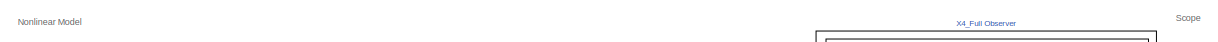
[diagram: root canvas - part 1/6, top left region]
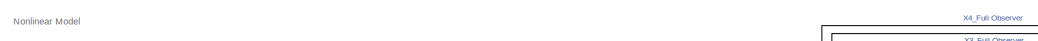
[diagram: root canvas - part 2/6, top right region]
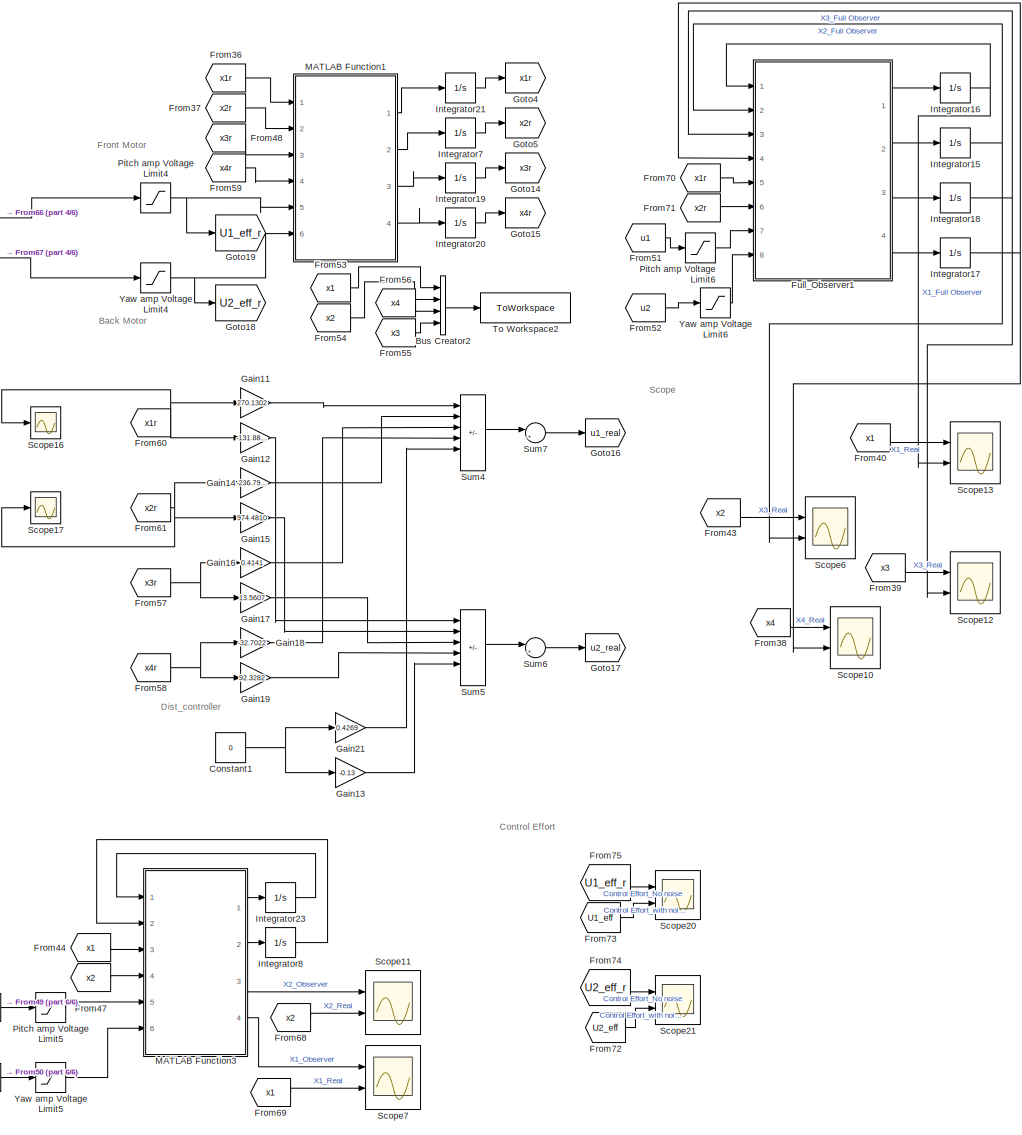
[diagram: root canvas - part 3/6, right side, full height]
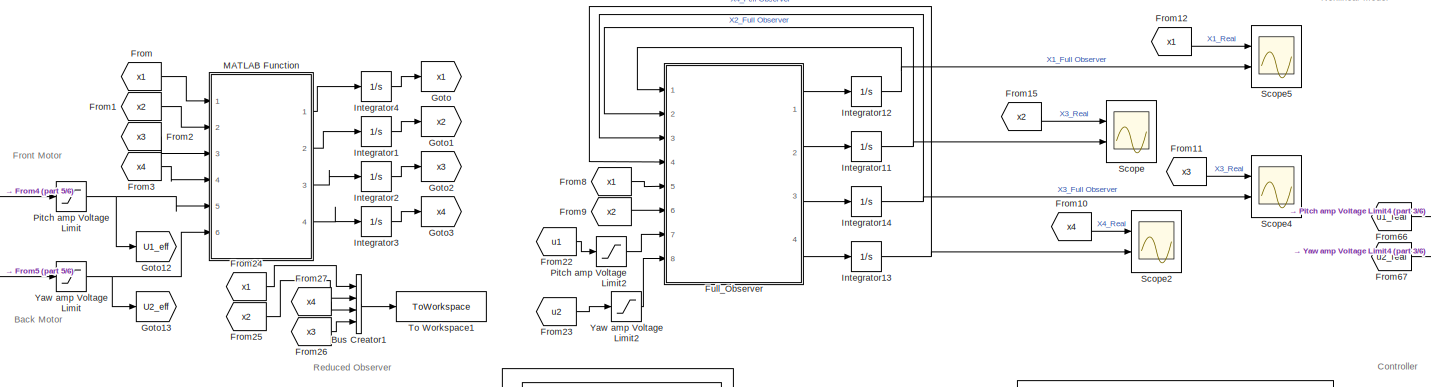
[diagram: root canvas - part 4/6, top center region]
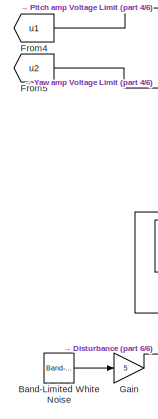
[diagram: root canvas - part 5/6, middle left region]
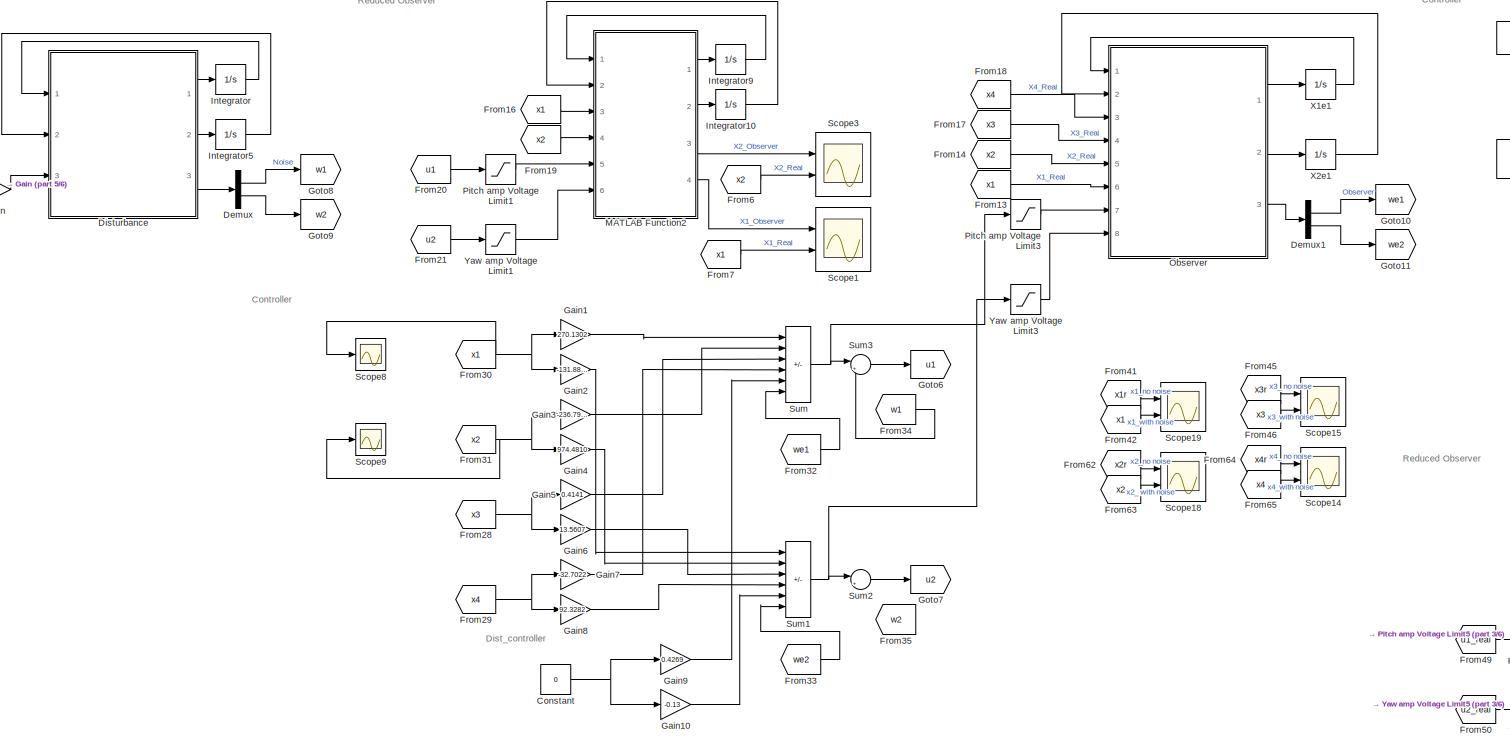
[diagram: root canvas - part 6/6, central region]
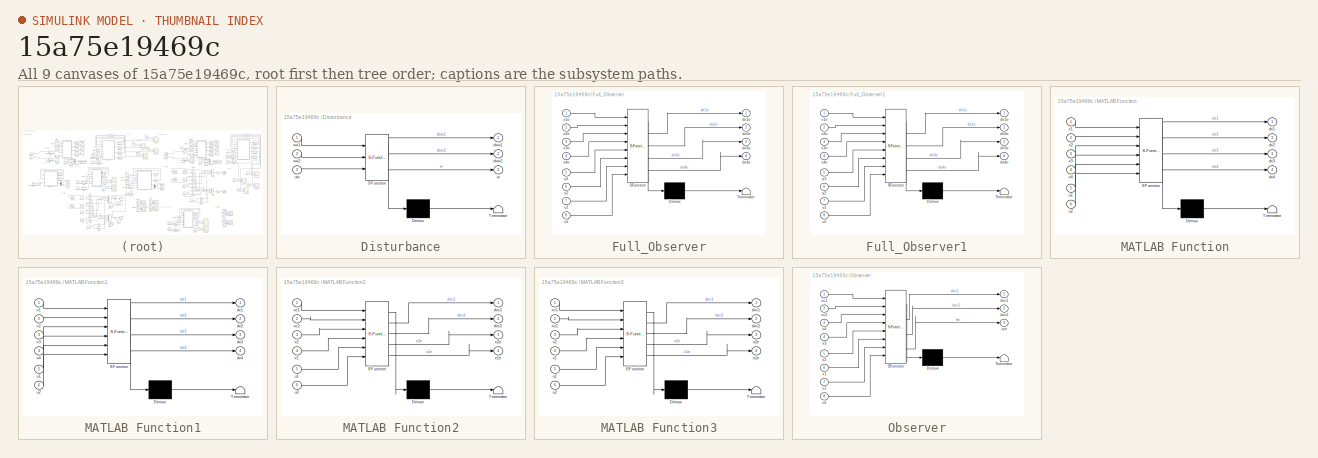
[diagram: thumbnail index - all 9 canvases of the model, root first then tree order]
MODEL slx_15a75e19469c
KIND model
CONFIG AbsTol = auto
CONFIG EnableMultiTasking = off
CONFIG FixedStep = auto
CONFIG InitFcn = % NOTE: If using VoltPAQ-X1, make sure both Gain switches are set to 3.\nK_AMP = 3;\n% Maximum Output Voltage (V): YAW limited to 15 V. PITCH limited to 24 V.\nVMAX_AMP_P = 24;\nVMAX_AMP_Y = 15;\n% Initial Angle of Pitch (rad)\ntheta_0 = -40.5*pi/180;\n\ng = 9.81;\n\n% Pitch and Yaw Motor Armature Resistance (Ohm)\nR_m_p = 0.83;\nR_m_y = 1.60;\n\n% Pitch and Yaw Motor Current-Torque Constant (N.m/A)\nK_t_p = 0.0...<+2432ch>
CONFIG MaxStep = auto
CONFIG MinStep = auto
CONFIG RelTol = 1e-3
CONFIG SampleTimeConstraint = Unconstrained
CONFIG Solver = VariableStepAuto
CONFIG SolverName = VariableStepAuto
CONFIG StartTime = 0.0
CONFIG StopTime = 10.0
BLOCK [Reference] Band-Limited White Noise  REF=simulink/Sources/Band-Limited
White Noise
  Ports = [0, 1]
  SourceBlock = simulink/Sources/Band-Limited\nWhite Noise
  SourceProductBaseCode = SL
  SourceType = Band-Limited White Noise.
BLOCK [BusCreator] Bus Creator1
  DisplayOption = bar
  InheritFromInputs = on
  Inputs = 4
  Ports = [4, 1]
BLOCK [BusCreator] Bus Creator2
  DisplayOption = bar
  InheritFromInputs = on
  Inputs = 4
  Ports = [4, 1]
BLOCK [Constant] Constant
  Value = 0
BLOCK [Constant] Constant1
  Value = 0
BLOCK [Demux] Demux
  Outputs = 2
  Ports = [1, 2]
BLOCK [Demux] Demux1
  Outputs = 2
  Ports = [1, 2]
BLOCK [SubSystem] Disturbance
  ErrorFcn = Stateflow.Translate.translate
  PermitHierarchicalResolution = ExplicitOnly
  Ports = [3, 3]
  RequestExecContextInheritance = off
  SFBlockType = MATLAB Function
  TreatAsAtomicUnit = on
BLOCK [Demux] Disturbance/ Demux 
  Outputs = 1
  Ports = [1, 1]
BLOCK [S-Function] Disturbance/ SFunction 
  EnableBusSupport = on
  FunctionName = sf_sfun
  PortCounts = [3 4]
  Ports = [3, 4]
  SFcnIsStateOwnerBlock = off
  SFunctionDeploymentMode = off
  Tag = Stateflow S-Function comparison_noise_nonoise 19
BLOCK [Terminator] Disturbance/ Terminator 
BLOCK [Outport] Disturbance/dxw1
BLOCK [Outport] Disturbance/dxw2
  Port = 2
BLOCK [Inport] Disturbance/uw
  Port = 3
BLOCK [Outport] Disturbance/w
  Port = 3
BLOCK [Inport] Disturbance/xw1
BLOCK [Inport] Disturbance/xw2
  Port = 2
BLOCK [From] From
  GotoTag = x1
BLOCK [From] From1
  GotoTag = x2
BLOCK [From] From10
  GotoTag = x4
BLOCK [From] From11
  GotoTag = x3
BLOCK [From] From12
  GotoTag = x1
BLOCK [From] From13
  GotoTag = x1
BLOCK [From] From14
  GotoTag = x2
BLOCK [From] From15
  GotoTag = x2
BLOCK [From] From16
  GotoTag = x1
BLOCK [From] From17
  GotoTag = x3
BLOCK [From] From18
  GotoTag = x4
BLOCK [From] From19
  GotoTag = x2
BLOCK [From] From2
  GotoTag = x3
BLOCK [From] From20
  GotoTag = u1
BLOCK [From] From21
  GotoTag = u2
BLOCK [From] From22
  GotoTag = u1
BLOCK [From] From23
  GotoTag = u2
BLOCK [From] From24
  GotoTag = x1
BLOCK [From] From25
  GotoTag = x2
BLOCK [From] From26
  GotoTag = x3
BLOCK [From] From27
  GotoTag = x4
BLOCK [From] From28
  GotoTag = x3
BLOCK [From] From29
  GotoTag = x4
BLOCK [From] From3
  GotoTag = x4
BLOCK [From] From30
  GotoTag = x1
BLOCK [From] From31
  GotoTag = x2
BLOCK [From] From32
  GotoTag = we1
BLOCK [From] From33
  GotoTag = we2
BLOCK [From] From34
  GotoTag = w1
BLOCK [From] From35
  GotoTag = w2
BLOCK [From] From36
  GotoTag = x1r
BLOCK [From] From37
  GotoTag = x2r
BLOCK [From] From38
  GotoTag = x4
BLOCK [From] From39
  GotoTag = x3
BLOCK [From] From4
  GotoTag = u1
BLOCK [From] From40
  GotoTag = x1
BLOCK [From] From41
  GotoTag = x1r
BLOCK [From] From42
  GotoTag = x1
BLOCK [From] From43
  GotoTag = x2
BLOCK [From] From44
  GotoTag = x1
BLOCK [From] From45
  GotoTag = x3r
BLOCK [From] From46
  GotoTag = x3
BLOCK [From] From47
  GotoTag = x2
BLOCK [From] From48
  GotoTag = x3r
BLOCK [From] From49
  GotoTag = u1_real
BLOCK [From] From5
  GotoTag = u2
BLOCK [From] From50
  GotoTag = u2_real
BLOCK [From] From51
  GotoTag = u1
BLOCK [From] From52
  GotoTag = u2
BLOCK [From] From53
  GotoTag = x1
BLOCK [From] From54
  GotoTag = x2
BLOCK [From] From55
  GotoTag = x3
BLOCK [From] From56
  GotoTag = x4
BLOCK [From] From57
  GotoTag = x3r
BLOCK [From] From58
  GotoTag = x4r
BLOCK [From] From59
  GotoTag = x4r
BLOCK [From] From6
  GotoTag = x2
BLOCK [From] From60
  GotoTag = x1r
BLOCK [From] From61
  GotoTag = x2r
BLOCK [From] From62
  GotoTag = x2r
BLOCK [From] From63
  GotoTag = x2
BLOCK [From] From64
  GotoTag = x4r
BLOCK [From] From65
  GotoTag = x4
BLOCK [From] From66
  GotoTag = u1_real
BLOCK [From] From67
  GotoTag = u2_real
BLOCK [From] From68
  GotoTag = x2
BLOCK [From] From69
  GotoTag = x1
BLOCK [From] From7
  GotoTag = x1
BLOCK [From] From70
  GotoTag = x1r
BLOCK [From] From71
  GotoTag = x2r
BLOCK [From] From72
  GotoTag = U2_eff
BLOCK [From] From73
  GotoTag = U1_eff
BLOCK [From] From74
  GotoTag = U2_eff_r
BLOCK [From] From75
  GotoTag = U1_eff_r
BLOCK [From] From8
  GotoTag = x1
BLOCK [From] From9
  GotoTag = x2
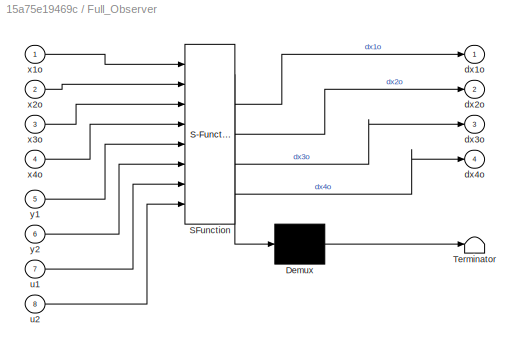
BLOCK [SubSystem] Full_Observer
  ErrorFcn = Stateflow.Translate.translate
  PermitHierarchicalResolution = ExplicitOnly
  Ports = [8, 4]
  RequestExecContextInheritance = off
  SFBlockType = MATLAB Function
  TreatAsAtomicUnit = on
BLOCK [Demux] Full_Observer/ Demux 
  Outputs = 1
  Ports = [1, 1]
BLOCK [S-Function] Full_Observer/ SFunction 
  EnableBusSupport = on
  FunctionName = sf_sfun
  PortCounts = [8 5]
  Ports = [8, 5]
  SFcnIsStateOwnerBlock = off
  SFunctionDeploymentMode = off
  Tag = Stateflow S-Function comparison_noise_nonoise 13
BLOCK [Terminator] Full_Observer/ Terminator 
BLOCK [Outport] Full_Observer/dx1o
  VectorParamsAs1DForOutWhenUnconnected = off
BLOCK [Outport] Full_Observer/dx2o
  Port = 2
BLOCK [Outport] Full_Observer/dx3o
  Port = 3
BLOCK [Outport] Full_Observer/dx4o
  Port = 4
BLOCK [Inport] Full_Observer/u1
  Port = 7
BLOCK [Inport] Full_Observer/u2
  Port = 8
BLOCK [Inport] Full_Observer/x1o
BLOCK [Inport] Full_Observer/x2o
  Port = 2
BLOCK [Inport] Full_Observer/x3o
  Port = 3
BLOCK [Inport] Full_Observer/x4o
  Port = 4
BLOCK [Inport] Full_Observer/y1
  Port = 5
BLOCK [Inport] Full_Observer/y2
  Port = 6
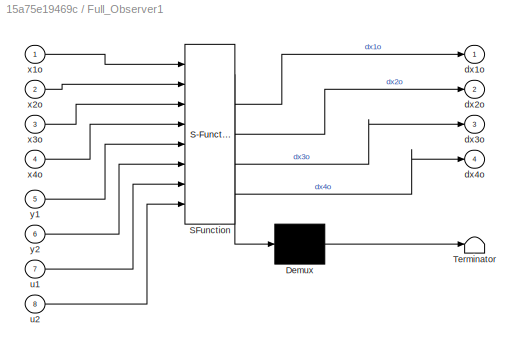
BLOCK [SubSystem] Full_Observer1
  ErrorFcn = Stateflow.Translate.translate
  PermitHierarchicalResolution = ExplicitOnly
  Ports = [8, 4]
  RequestExecContextInheritance = off
  SFBlockType = MATLAB Function
  TreatAsAtomicUnit = on
BLOCK [Demux] Full_Observer1/ Demux 
  Outputs = 1
  Ports = [1, 1]
BLOCK [S-Function] Full_Observer1/ SFunction 
  EnableBusSupport = on
  FunctionName = sf_sfun
  PortCounts = [8 5]
  Ports = [8, 5]
  SFcnIsStateOwnerBlock = off
  SFunctionDeploymentMode = off
  Tag = Stateflow S-Function comparison_noise_nonoise 4
BLOCK [Terminator] Full_Observer1/ Terminator 
BLOCK [Outport] Full_Observer1/dx1o
  VectorParamsAs1DForOutWhenUnconnected = off
BLOCK [Outport] Full_Observer1/dx2o
  Port = 2
BLOCK [Outport] Full_Observer1/dx3o
  Port = 3
BLOCK [Outport] Full_Observer1/dx4o
  Port = 4
BLOCK [Inport] Full_Observer1/u1
  Port = 7
BLOCK [Inport] Full_Observer1/u2
  Port = 8
BLOCK [Inport] Full_Observer1/x1o
BLOCK [Inport] Full_Observer1/x2o
  Port = 2
BLOCK [Inport] Full_Observer1/x3o
  Port = 3
BLOCK [Inport] Full_Observer1/x4o
  Port = 4
BLOCK [Inport] Full_Observer1/y1
  Port = 5
BLOCK [Inport] Full_Observer1/y2
  Port = 6
BLOCK [Gain] Gain
  Gain = 5
BLOCK [Gain] Gain1
  Gain = 270.1302
BLOCK [Gain] Gain10
  Gain = -0.13
BLOCK [Gain] Gain11
  Gain = 270.1302
BLOCK [Gain] Gain12
  Gain = -131.8823
BLOCK [Gain] Gain13
  Gain = -0.13
BLOCK [Gain] Gain14
  Gain = -236.7938
BLOCK [Gain] Gain15
  Gain = 974.4810
BLOCK [Gain] Gain16
  Gain = 0.4141
BLOCK [Gain] Gain17
  Gain = 13.5607
BLOCK [Gain] Gain18
  Gain = -32.7022
BLOCK [Gain] Gain19
  Gain = 92.3282
BLOCK [Gain] Gain2
  Gain = -131.8823
BLOCK [Gain] Gain21
  Gain = 0.4269
BLOCK [Gain] Gain3
  Gain = -236.7938
BLOCK [Gain] Gain4
  Gain = 974.4810
BLOCK [Gain] Gain5
  Gain = 0.4141
BLOCK [Gain] Gain6
  Gain = 13.5607
BLOCK [Gain] Gain7
  Gain = -32.7022
BLOCK [Gain] Gain8
  Gain = 92.3282
BLOCK [Gain] Gain9
  Gain = 0.4269
BLOCK [Goto] Goto
  GotoTag = x1
BLOCK [Goto] Goto1
  GotoTag = x2
BLOCK [Goto] Goto10
  GotoTag = we1
BLOCK [Goto] Goto11
  GotoTag = we2
BLOCK [Goto] Goto12
  GotoTag = U1_eff
BLOCK [Goto] Goto13
  GotoTag = U2_eff
BLOCK [Goto] Goto14
  GotoTag = x3r
BLOCK [Goto] Goto15
  GotoTag = x4r
BLOCK [Goto] Goto16
  GotoTag = u1_real
BLOCK [Goto] Goto17
  GotoTag = u2_real
BLOCK [Goto] Goto18
  GotoTag = U2_eff_r
BLOCK [Goto] Goto19
  GotoTag = U1_eff_r
BLOCK [Goto] Goto2
  GotoTag = x3
BLOCK [Goto] Goto3
  GotoTag = x4
BLOCK [Goto] Goto4
  GotoTag = x1r
BLOCK [Goto] Goto5
  GotoTag = x2r
BLOCK [Goto] Goto6
  GotoTag = u1
BLOCK [Goto] Goto7
  GotoTag = u2
BLOCK [Goto] Goto8
  GotoTag = w1
BLOCK [Goto] Goto9
  GotoTag = w2
BLOCK [Integrator] Integrator
  Ports = [1, 1]
BLOCK [Integrator] Integrator1
  Ports = [1, 1]
BLOCK [Integrator] Integrator10
  Ports = [1, 1]
BLOCK [Integrator] Integrator11
  Ports = [1, 1]
BLOCK [Integrator] Integrator12
  Ports = [1, 1]
BLOCK [Integrator] Integrator13
  Ports = [1, 1]
BLOCK [Integrator] Integrator14
  Ports = [1, 1]
BLOCK [Integrator] Integrator15
  Ports = [1, 1]
BLOCK [Integrator] Integrator16
  Ports = [1, 1]
BLOCK [Integrator] Integrator17
  Ports = [1, 1]
BLOCK [Integrator] Integrator18
  Ports = [1, 1]
BLOCK [Integrator] Integrator19
  InitialCondition = 10
  Ports = [1, 1]
BLOCK [Integrator] Integrator2
  InitialCondition = 10
  Ports = [1, 1]
BLOCK [Integrator] Integrator20
  Ports = [1, 1]
BLOCK [Integrator] Integrator21
  LowerSaturationLimit = -40.5*pi/180
  Ports = [1, 1]
  UpperSaturationLimit = 40.5*pi/180
BLOCK [Integrator] Integrator23
  Ports = [1, 1]
BLOCK [Integrator] Integrator3
  Ports = [1, 1]
BLOCK [Integrator] Integrator4
  LowerSaturationLimit = -40.5*pi/180
  Ports = [1, 1]
  UpperSaturationLimit = 40.5*pi/180
BLOCK [Integrator] Integrator5
  Ports = [1, 1]
BLOCK [Integrator] Integrator7
  Ports = [1, 1]
BLOCK [Integrator] Integrator8
  Ports = [1, 1]
BLOCK [Integrator] Integrator9
  Ports = [1, 1]
BLOCK [SubSystem] MATLAB Function
  ErrorFcn = Stateflow.Translate.translate
  PermitHierarchicalResolution = ExplicitOnly
  Ports = [6, 4]
  RequestExecContextInheritance = off
  SFBlockType = MATLAB Function
  TreatAsAtomicUnit = on
BLOCK [Demux] MATLAB Function/ Demux 
  Outputs = 1
  Ports = [1, 1]
BLOCK [S-Function] MATLAB Function/ SFunction 
  EnableBusSupport = on
  FunctionName = sf_sfun
  PortCounts = [6 5]
  Ports = [6, 5]
  SFcnIsStateOwnerBlock = off
  SFunctionDeploymentMode = off
  Tag = Stateflow S-Function comparison_noise_nonoise 18
BLOCK [Terminator] MATLAB Function/ Terminator 
BLOCK [Outport] MATLAB Function/dx1
BLOCK [Outport] MATLAB Function/dx2
  Port = 2
BLOCK [Outport] MATLAB Function/dx3
  Port = 3
BLOCK [Outport] MATLAB Function/dx4
  Port = 4
BLOCK [Inport] MATLAB Function/u1
  Port = 5
BLOCK [Inport] MATLAB Function/u2
  Port = 6
BLOCK [Inport] MATLAB Function/x1
BLOCK [Inport] MATLAB Function/x2
  Port = 2
BLOCK [Inport] MATLAB Function/x3
  Port = 3
BLOCK [Inport] MATLAB Function/x4
  Port = 4
BLOCK [SubSystem] MATLAB Function1
  ErrorFcn = Stateflow.Translate.translate
  PermitHierarchicalResolution = ExplicitOnly
  Ports = [6, 4]
  RequestExecContextInheritance = off
  SFBlockType = MATLAB Function
  TreatAsAtomicUnit = on
BLOCK [Demux] MATLAB Function1/ Demux 
  Outputs = 1
  Ports = [1, 1]
BLOCK [S-Function] MATLAB Function1/ SFunction 
  EnableBusSupport = on
  FunctionName = sf_sfun
  PortCounts = [6 5]
  Ports = [6, 5]
  SFcnIsStateOwnerBlock = off
  SFunctionDeploymentMode = off
  Tag = Stateflow S-Function comparison_noise_nonoise 5
BLOCK [Terminator] MATLAB Function1/ Terminator 
BLOCK [Outport] MATLAB Function1/dx1
BLOCK [Outport] MATLAB Function1/dx2
  Port = 2
BLOCK [Outport] MATLAB Function1/dx3
  Port = 3
BLOCK [Outport] MATLAB Function1/dx4
  Port = 4
BLOCK [Inport] MATLAB Function1/u1
  Port = 5
BLOCK [Inport] MATLAB Function1/u2
  Port = 6
BLOCK [Inport] MATLAB Function1/x1
BLOCK [Inport] MATLAB Function1/x2
  Port = 2
BLOCK [Inport] MATLAB Function1/x3
  Port = 3
BLOCK [Inport] MATLAB Function1/x4
  Port = 4
BLOCK [SubSystem] MATLAB Function2
  ErrorFcn = Stateflow.Translate.translate
  PermitHierarchicalResolution = ExplicitOnly
  Ports = [6, 4]
  RequestExecContextInheritance = off
  SFBlockType = MATLAB Function
  TreatAsAtomicUnit = on
BLOCK [Demux] MATLAB Function2/ Demux 
  Outputs = 1
  Ports = [1, 1]
BLOCK [S-Function] MATLAB Function2/ SFunction 
  EnableBusSupport = on
  FunctionName = sf_sfun
  PortCounts = [6 5]
  Ports = [6, 5]
  SFcnIsStateOwnerBlock = off
  SFunctionDeploymentMode = off
  Tag = Stateflow S-Function comparison_noise_nonoise 2
BLOCK [Terminator] MATLAB Function2/ Terminator 
BLOCK [Outport] MATLAB Function2/dxc1
BLOCK [Outport] MATLAB Function2/dxc2
  Port = 2
BLOCK [Inport] MATLAB Function2/u1
  Port = 5
BLOCK [Inport] MATLAB Function2/u2
  Port = 6
BLOCK [Inport] MATLAB Function2/x1
  Port = 4
BLOCK [Outport] MATLAB Function2/x1e
  Port = 4
BLOCK [Inport] MATLAB Function2/x2
  Port = 3
BLOCK [Outport] MATLAB Function2/x2e
  Port = 3
BLOCK [Inport] MATLAB Function2/xc1
BLOCK [Inport] MATLAB Function2/xc2
  Port = 2
BLOCK [SubSystem] MATLAB Function3
  ErrorFcn = Stateflow.Translate.translate
  PermitHierarchicalResolution = ExplicitOnly
  Ports = [6, 4]
  RequestExecContextInheritance = off
  SFBlockType = MATLAB Function
  TreatAsAtomicUnit = on
BLOCK [Demux] MATLAB Function3/ Demux 
  Outputs = 1
  Ports = [1, 1]
BLOCK [S-Function] MATLAB Function3/ SFunction 
  EnableBusSupport = on
  FunctionName = sf_sfun
  PortCounts = [6 5]
  Ports = [6, 5]
  SFcnIsStateOwnerBlock = off
  SFunctionDeploymentMode = off
  Tag = Stateflow S-Function comparison_noise_nonoise 6
BLOCK [Terminator] MATLAB Function3/ Terminator 
BLOCK [Outport] MATLAB Function3/dxc1
BLOCK [Outport] MATLAB Function3/dxc2
  Port = 2
BLOCK [Inport] MATLAB Function3/u1
  Port = 5
BLOCK [Inport] MATLAB Function3/u2
  Port = 6
BLOCK [Inport] MATLAB Function3/x1
  Port = 4
BLOCK [Outport] MATLAB Function3/x1e
  Port = 4
BLOCK [Inport] MATLAB Function3/x2
  Port = 3
BLOCK [Outport] MATLAB Function3/x2e
  Port = 3
BLOCK [Inport] MATLAB Function3/xc1
BLOCK [Inport] MATLAB Function3/xc2
  Port = 2
BLOCK [SubSystem] Observer
  ErrorFcn = Stateflow.Translate.translate
  PermitHierarchicalResolution = ExplicitOnly
  Ports = [8, 3]
  RequestExecContextInheritance = off
  SFBlockType = MATLAB Function
  TreatAsAtomicUnit = on
BLOCK [Demux] Observer/ Demux 
  Outputs = 1
  Ports = [1, 1]
BLOCK [S-Function] Observer/ SFunction 
  EnableBusSupport = on
  FunctionName = sf_sfun
  PortCounts = [8 4]
  Ports = [8, 4]
  SFcnIsStateOwnerBlock = off
  SFunctionDeploymentMode = off
  Tag = Stateflow S-Function comparison_noise_nonoise 1
BLOCK [Terminator] Observer/ Terminator 
BLOCK [Outport] Observer/dxc1
  VectorParamsAs1DForOutWhenUnconnected = off
BLOCK [Outport] Observer/dxc2
  Port = 2
BLOCK [Inport] Observer/u1
  Port = 7
BLOCK [Inport] Observer/u2
  Port = 8
BLOCK [Outport] Observer/we
  Port = 3
BLOCK [Inport] Observer/x1
  Port = 6
BLOCK [Inport] Observer/x2
  Port = 5
BLOCK [Inport] Observer/x3
  Port = 4
BLOCK [Inport] Observer/x4
  Port = 3
BLOCK [Inport] Observer/xc1
BLOCK [Inport] Observer/xc2
  Port = 2
BLOCK [Saturate] Pitch amp Voltage Limit
  LowerLimit = - VMAX_AMP_P
  UpperLimit = VMAX_AMP_P
BLOCK [Saturate] Pitch amp Voltage Limit1
  LowerLimit = - VMAX_AMP_P
  UpperLimit = VMAX_AMP_P
BLOCK [Saturate] Pitch amp Voltage Limit2
  LowerLimit = - VMAX_AMP_P
  UpperLimit = VMAX_AMP_P
BLOCK [Saturate] Pitch amp Voltage Limit3
  LowerLimit = - VMAX_AMP_P
  UpperLimit = VMAX_AMP_P
BLOCK [Saturate] Pitch amp Voltage Limit4
  LowerLimit = - VMAX_AMP_P
  UpperLimit = VMAX_AMP_P
BLOCK [Saturate] Pitch amp Voltage Limit5
  LowerLimit = - VMAX_AMP_P
  UpperLimit = VMAX_AMP_P
BLOCK [Saturate] Pitch amp Voltage Limit6
  LowerLimit = - VMAX_AMP_P
  UpperLimit = VMAX_AMP_P
BLOCK [Scope] Scope
  Floating = off
  NumInputPorts = 2
  Ports = [2]
  ScopeSpecificationString = Simulink.scopes.TimeScopeBlockCfg('CurrentConfiguration', extmgr.ConfigurationSet(extmgr.Configuration('Core','General UI',true),extmgr.Configuration('Core','Source UI',true),extmgr.Configuration('Sources','WiredSimulink',true,'DataLoggingVariableName','ScopeData2'),extmgr.Configuration('Visuals','Time Domain',true,'SerializedDisplays',{struct('MinYLimReal','-0.10245','MaxYLimReal','0.01352','YLab...<+1720ch>
BLOCK [Scope] Scope1
  Floating = off
  NumInputPorts = 2
  Ports = [2]
  ScopeSpecificationString = Simulink.scopes.TimeScopeBlockCfg('CurrentConfiguration', extmgr.ConfigurationSet(extmgr.Configuration('Core','General UI',true),extmgr.Configuration('Core','Source UI',true),extmgr.Configuration('Sources','WiredSimulink',true,'DataLoggingVariableName','ScopeData3'),extmgr.Configuration('Visuals','Time Domain',true,'SerializedDisplays',{struct('MinYLimReal','-1.65036','MaxYLimReal','1.30856','YLab...<+2034ch>
BLOCK [Scope] Scope10
  Floating = off
  NumInputPorts = 2
  Ports = [2]
  ScopeSpecificationString = Simulink.scopes.TimeScopeBlockCfg('CurrentConfiguration', extmgr.ConfigurationSet(extmgr.Configuration('Core','General UI',true),extmgr.Configuration('Core','Source UI',true),extmgr.Configuration('Sources','WiredSimulink',true,'DataLoggingVariableName','ScopeData8'),extmgr.Configuration('Visuals','Time Domain',true,'SerializedDisplays',{struct('MinYLimReal','-0.95108','MaxYLimReal','0.59142','YLab...<+1722ch>
BLOCK [Scope] Scope11
  Floating = off
  NumInputPorts = 2
  Ports = [2]
  ScopeSpecificationString = Simulink.scopes.TimeScopeBlockCfg('CurrentConfiguration', extmgr.ConfigurationSet(extmgr.Configuration('Core','General UI',true),extmgr.Configuration('Core','Source UI',true),extmgr.Configuration('Sources','WiredSimulink',true,'DataLoggingVariableName','ScopeData10'),extmgr.Configuration('Visuals','Time Domain',true,'SerializedDisplays',{struct('MinYLimReal','-2.84676','MaxYLimReal','0.45285','YLa...<+2043ch>
BLOCK [Scope] Scope12
  Floating = off
  NumInputPorts = 2
  Ports = [2]
  ScopeSpecificationString = Simulink.scopes.TimeScopeBlockCfg('CurrentConfiguration', extmgr.ConfigurationSet(extmgr.Configuration('Core','General UI',true),extmgr.Configuration('Core','Source UI',true),extmgr.Configuration('Sources','WiredSimulink',true,'DataLoggingVariableName','ScopeData11'),extmgr.Configuration('Visuals','Time Domain',true,'SerializedDisplays',{struct('MinYLimReal','-3.57316','MaxYLimReal','11.50813','YL...<+1724ch>
BLOCK [Scope] Scope13
  Floating = off
  NumInputPorts = 2
  Ports = [2]
  ScopeSpecificationString = Simulink.scopes.TimeScopeBlockCfg('CurrentConfiguration', extmgr.ConfigurationSet(extmgr.Configuration('Core','General UI',true),extmgr.Configuration('Core','Source UI',true),extmgr.Configuration('Sources','WiredSimulink',true,'DataLoggingVariableName','ScopeData12'),extmgr.Configuration('Visuals','Time Domain',true,'SerializedDisplays',{struct('MinYLimReal','-0.04914','MaxYLimReal','0.3939','YLab...<+1719ch>
BLOCK [Scope] Scope14
  Floating = off
  NumInputPorts = 2
  Ports = [2]
  ScopeSpecificationString = Simulink.scopes.TimeScopeBlockCfg('CurrentConfiguration', extmgr.ConfigurationSet(extmgr.Configuration('Core','General UI',true),extmgr.Configuration('Core','Source UI',true),extmgr.Configuration('Sources','WiredSimulink',true,'DataLoggingVariableName','ScopeData1'),extmgr.Configuration('Visuals','Time Domain',true,'SerializedDisplays',{struct('MinYLimReal','-0.57805','MaxYLimReal','0.73764','YLab...<+1693ch>
BLOCK [Scope] Scope15
  Floating = off
  NumInputPorts = 2
  Ports = [2]
  ScopeSpecificationString = Simulink.scopes.TimeScopeBlockCfg('CurrentConfiguration', extmgr.ConfigurationSet(extmgr.Configuration('Core','General UI',true),extmgr.Configuration('Core','Source UI',true),extmgr.Configuration('Sources','WiredSimulink',true,'DataLoggingVariableName','ScopeData13'),extmgr.Configuration('Visuals','Time Domain',true,'SerializedDisplays',{struct('MinYLimReal','-6.89748','MaxYLimReal','11.8775','YLa...<+1689ch>
BLOCK [Scope] Scope16
  Floating = off
  NumInputPorts = 1
  Ports = [1]
  ScopeSpecificationString = Simulink.scopes.TimeScopeBlockCfg('CurrentConfiguration', extmgr.ConfigurationSet(extmgr.Configuration('Core','General UI',true),extmgr.Configuration('Core','Source UI',true),extmgr.Configuration('Sources','WiredSimulink',true,'DataLoggingVariableName','ScopeData14'),extmgr.Configuration('Visuals','Time Domain',true,'SerializedDisplays',{struct('MinYLimReal','-0.51971','MaxYLimReal','0.05775','YLa...<+1371ch>
BLOCK [Scope] Scope17
  Floating = off
  NumInputPorts = 1
  Ports = [1]
  ScopeSpecificationString = Simulink.scopes.TimeScopeBlockCfg('CurrentConfiguration', extmgr.ConfigurationSet(extmgr.Configuration('Core','General UI',true),extmgr.Configuration('Core','Source UI',true),extmgr.Configuration('Sources','WiredSimulink',true,'DataLoggingVariableName','ScopeData15'),extmgr.Configuration('Visuals','Time Domain',true,'SerializedDisplays',{struct('MinYLimReal','-0.09182','MaxYLimReal','2.23242','YLa...<+1371ch>
BLOCK [Scope] Scope18
  Floating = off
  NumInputPorts = 2
  Ports = [2]
  ScopeSpecificationString = Simulink.scopes.TimeScopeBlockCfg('CurrentConfiguration', extmgr.ConfigurationSet(extmgr.Configuration('Core','General UI',true),extmgr.Configuration('Core','Source UI',true),extmgr.Configuration('Sources','WiredSimulink',true,'DataLoggingVariableName','ScopeData18'),extmgr.Configuration('Visuals','Time Domain',true,'SerializedDisplays',{struct('MinYLimReal','-0.0291','MaxYLimReal','0.04088','YLab...<+1688ch>
BLOCK [Scope] Scope19
  Floating = off
  NumInputPorts = 2
  Ports = [2]
  ScopeSpecificationString = Simulink.scopes.TimeScopeBlockCfg('CurrentConfiguration', extmgr.ConfigurationSet(extmgr.Configuration('Core','General UI',true),extmgr.Configuration('Core','Source UI',true),extmgr.Configuration('Sources','WiredSimulink',true,'DataLoggingVariableName','ScopeData19'),extmgr.Configuration('Visuals','Time Domain',true,'SerializedDisplays',{struct('MinYLimReal','-0.25623','MaxYLimReal','0.42153','YLa...<+1693ch>
BLOCK [Scope] Scope2
  Floating = off
  NumInputPorts = 2
  Ports = [2]
  ScopeSpecificationString = Simulink.scopes.TimeScopeBlockCfg('CurrentConfiguration', extmgr.ConfigurationSet(extmgr.Configuration('Core','General UI',true),extmgr.Configuration('Core','Source UI',true),extmgr.Configuration('Sources','WiredSimulink',true,'DataLoggingVariableName','ScopeData4'),extmgr.Configuration('Visuals','Time Domain',true,'SerializedDisplays',{struct('MinYLimReal','-0.95108','MaxYLimReal','0.59142','YLab...<+1722ch>
BLOCK [Scope] Scope20
  Floating = off
  NumInputPorts = 2
  Ports = [2]
  ScopeSpecificationString = Simulink.scopes.TimeScopeBlockCfg('CurrentConfiguration', extmgr.ConfigurationSet(extmgr.Configuration('Core','General UI',true),extmgr.Configuration('Core','Source UI',true),extmgr.Configuration('Sources','WiredSimulink',true,'DataLoggingVariableName','ScopeData20'),extmgr.Configuration('Visuals','Time Domain',true,'SerializedDisplays',{struct('MinYLimReal','-30.00000','MaxYLimReal','30.00000','Y...<+1722ch>
BLOCK [Scope] Scope21
  Floating = off
  NumInputPorts = 2
  Ports = [2]
  ScopeSpecificationString = Simulink.scopes.TimeScopeBlockCfg('CurrentConfiguration', extmgr.ConfigurationSet(extmgr.Configuration('Core','General UI',true),extmgr.Configuration('Core','Source UI',true),extmgr.Configuration('Sources','WiredSimulink',true,'DataLoggingVariableName','ScopeData21'),extmgr.Configuration('Visuals','Time Domain',true,'SerializedDisplays',{struct('MinYLimReal','-18.75','MaxYLimReal','18.75','YLabelR...<+1705ch>
BLOCK [Scope] Scope3
  Floating = off
  NumInputPorts = 2
  Ports = [2]
  ScopeSpecificationString = Simulink.scopes.TimeScopeBlockCfg('CurrentConfiguration', extmgr.ConfigurationSet(extmgr.Configuration('Core','General UI',true),extmgr.Configuration('Core','Source UI',true),extmgr.Configuration('Sources','WiredSimulink',true,'DataLoggingVariableName','ScopeData5'),extmgr.Configuration('Visuals','Time Domain',true,'SerializedDisplays',{struct('MinYLimReal','-2.84676','MaxYLimReal','0.45285','YLab...<+2042ch>
BLOCK [Scope] Scope4
  Floating = off
  NumInputPorts = 2
  Ports = [2]
  ScopeSpecificationString = Simulink.scopes.TimeScopeBlockCfg('CurrentConfiguration', extmgr.ConfigurationSet(extmgr.Configuration('Core','General UI',true),extmgr.Configuration('Core','Source UI',true),extmgr.Configuration('Sources','WiredSimulink',true,'DataLoggingVariableName','ScopeData6'),extmgr.Configuration('Visuals','Time Domain',true,'SerializedDisplays',{struct('MinYLimReal','-3.57316','MaxYLimReal','11.50813','YLa...<+1723ch>
BLOCK [Scope] Scope5
  Floating = off
  NumInputPorts = 2
  Ports = [2]
  ScopeSpecificationString = Simulink.scopes.TimeScopeBlockCfg('CurrentConfiguration', extmgr.ConfigurationSet(extmgr.Configuration('Core','General UI',true),extmgr.Configuration('Core','Source UI',true),extmgr.Configuration('Sources','WiredSimulink',true,'DataLoggingVariableName','ScopeData7'),extmgr.Configuration('Visuals','Time Domain',true,'SerializedDisplays',{struct('MinYLimReal','-0.04914','MaxYLimReal','0.3939','YLabe...<+1718ch>
BLOCK [Scope] Scope6
  Floating = off
  NumInputPorts = 2
  Ports = [2]
  ScopeSpecificationString = Simulink.scopes.TimeScopeBlockCfg('CurrentConfiguration', extmgr.ConfigurationSet(extmgr.Configuration('Core','General UI',true),extmgr.Configuration('Core','Source UI',true),extmgr.Configuration('Sources','WiredSimulink',true,'DataLoggingVariableName','ScopeData16'),extmgr.Configuration('Visuals','Time Domain',true,'SerializedDisplays',{struct('MinYLimReal','-0.10245','MaxYLimReal','0.01352','YLa...<+1721ch>
BLOCK [Scope] Scope7
  Floating = off
  NumInputPorts = 2
  Ports = [2]
  ScopeSpecificationString = Simulink.scopes.TimeScopeBlockCfg('CurrentConfiguration', extmgr.ConfigurationSet(extmgr.Configuration('Core','General UI',true),extmgr.Configuration('Core','Source UI',true),extmgr.Configuration('Sources','WiredSimulink',true,'DataLoggingVariableName','ScopeData17'),extmgr.Configuration('Visuals','Time Domain',true,'SerializedDisplays',{struct('MinYLimReal','-1.65036','MaxYLimReal','1.30856','YLa...<+2035ch>
BLOCK [Scope] Scope8
  Floating = off
  NumInputPorts = 1
  Ports = [1]
  ScopeSpecificationString = Simulink.scopes.TimeScopeBlockCfg('CurrentConfiguration', extmgr.ConfigurationSet(extmgr.Configuration('Core','General UI',true),extmgr.Configuration('Core','Source UI',true),extmgr.Configuration('Sources','WiredSimulink',true,'DataLoggingVariableName','ScopeData9'),extmgr.Configuration('Visuals','Time Domain',true,'SerializedDisplays',{struct('MinYLimReal','-0.51971','MaxYLimReal','0.05775','YLab...<+1370ch>
BLOCK [Scope] Scope9
  Floating = off
  NumInputPorts = 1
  Ports = [1]
  ScopeSpecificationString = Simulink.scopes.TimeScopeBlockCfg('CurrentConfiguration', extmgr.ConfigurationSet(extmgr.Configuration('Core','General UI',true),extmgr.Configuration('Core','Source UI',true),extmgr.Configuration('Sources','WiredSimulink',true),extmgr.Configuration('Visuals','Time Domain',true,'SerializedDisplays',{struct('MinYLimReal','-0.09182','MaxYLimReal','2.23242','YLabelReal','','MinYLimMag','0.00000','MaxY...<+1331ch>
BLOCK [Sum] Sum
  IconShape = rectangular
  Inputs = ------
  Ports = [6, 1]
BLOCK [Sum] Sum1
  IconShape = rectangular
  Inputs = ------
  Ports = [6, 1]
BLOCK [Sum] Sum2
  Inputs = |++
  Ports = [2, 1]
BLOCK [Sum] Sum3
  Inputs = |++
  Ports = [2, 1]
BLOCK [Sum] Sum4
  IconShape = rectangular
  Inputs = ------
  Ports = [6, 1]
BLOCK [Sum] Sum5
  IconShape = rectangular
  Inputs = ------
  Ports = [6, 1]
BLOCK [Sum] Sum6
  Inputs = |++
  Ports = [2, 1]
BLOCK [Sum] Sum7
  Inputs = |++
  Ports = [2, 1]
BLOCK [ToWorkspace] To Workspace1
  FixptAsFi = on
  MaxDataPoints = inf
  Ports = [1]
  SampleTime = -1
  VariableName = NonLinear
BLOCK [ToWorkspace] To Workspace2
  FixptAsFi = on
  MaxDataPoints = inf
  Ports = [1]
  SampleTime = -1
  VariableName = NonLinear1
BLOCK [Integrator] X1e1
  Ports = [1, 1]
BLOCK [Integrator] X2e1
  Ports = [1, 1]
BLOCK [Saturate] Yaw amp Voltage Limit
  LowerLimit = - VMAX_AMP_Y
  UpperLimit = VMAX_AMP_Y
BLOCK [Saturate] Yaw amp Voltage Limit1
  LowerLimit = - VMAX_AMP_Y
  UpperLimit = VMAX_AMP_Y
BLOCK [Saturate] Yaw amp Voltage Limit2
  LowerLimit = - VMAX_AMP_Y
  UpperLimit = VMAX_AMP_Y
BLOCK [Saturate] Yaw amp Voltage Limit3
  LowerLimit = - VMAX_AMP_Y
  UpperLimit = VMAX_AMP_Y
BLOCK [Saturate] Yaw amp Voltage Limit4
  LowerLimit = - VMAX_AMP_Y
  UpperLimit = VMAX_AMP_Y
BLOCK [Saturate] Yaw amp Voltage Limit5
  LowerLimit = - VMAX_AMP_Y
  UpperLimit = VMAX_AMP_Y
BLOCK [Saturate] Yaw amp Voltage Limit6
  LowerLimit = - VMAX_AMP_Y
  UpperLimit = VMAX_AMP_Y
ANNOTATION (root): Back Motor
ANNOTATION (root): Control Effort
ANNOTATION (root): Controller
ANNOTATION (root): Dist_controller
ANNOTATION (root): Front Motor
ANNOTATION (root): Nonlinear Model
ANNOTATION (root): Reduced Observer
ANNOTATION (root): Scope
LINE Band-Limited White Noise:1 -> Gain:1
LINE Bus Creator1:1 -> To Workspace1:1
LINE Bus Creator2:1 -> To Workspace2:1
NET Constant1:1 -> Gain13:1, Gain21:1
NET Constant:1 -> Gain10:1, Gain9:1
LINE Demux1:1 -> Goto10:1
LINE Demux1:2 -> Goto11:1
LINE Demux:1 -> Goto8:1
LINE Demux:2 -> Goto9:1
LINE Disturbance:1 -> Integrator:1
LINE Disturbance:2 -> Integrator5:1
LINE Disturbance:3 -> Demux:1
LINE From10:1 -> Scope2:1
LINE From11:1 -> Scope4:1
LINE From12:1 -> Scope5:1
LINE From13:1 -> Observer:6
LINE From14:1 -> Observer:5
LINE From15:1 -> Scope:1
LINE From16:1 -> MATLAB Function2:3
LINE From17:1 -> Observer:4
LINE From18:1 -> Observer:3
LINE From19:1 -> MATLAB Function2:4
LINE From1:1 -> MATLAB Function:2
LINE From20:1 -> Pitch amp Voltage Limit1:1
LINE From21:1 -> Yaw amp Voltage Limit1:1
LINE From22:1 -> Pitch amp Voltage Limit2:1
LINE From23:1 -> Yaw amp Voltage Limit2:1
LINE From24:1 -> Bus Creator1:1
LINE From25:1 -> Bus Creator1:2
LINE From26:1 -> Bus Creator1:4
LINE From27:1 -> Bus Creator1:3
NET From28:1 -> Gain5:1, Gain6:1
NET From29:1 -> Gain7:1, Gain8:1
LINE From2:1 -> MATLAB Function:3
NET From30:1 -> Gain1:1, Gain2:1, Scope8:1
NET From31:1 -> Gain3:1, Gain4:1, Scope9:1
LINE From32:1 -> Sum:6
LINE From33:1 -> Sum1:6
LINE From34:1 -> Sum3:2
LINE From36:1 -> MATLAB Function1:1
LINE From37:1 -> MATLAB Function1:2
LINE From38:1 -> Scope10:1
LINE From39:1 -> Scope12:1
LINE From3:1 -> MATLAB Function:4
LINE From40:1 -> Scope13:1
LINE From41:1 -> Scope19:1
LINE From42:1 -> Scope19:2
LINE From43:1 -> Scope6:1
LINE From44:1 -> MATLAB Function3:3
LINE From45:1 -> Scope15:1
LINE From46:1 -> Scope15:2
LINE From47:1 -> MATLAB Function3:4
LINE From48:1 -> MATLAB Function1:3
LINE From49:1 -> Pitch amp Voltage Limit5:1
LINE From4:1 -> Pitch amp Voltage Limit:1
LINE From50:1 -> Yaw amp Voltage Limit5:1
LINE From51:1 -> Pitch amp Voltage Limit6:1
LINE From52:1 -> Yaw amp Voltage Limit6:1
LINE From53:1 -> Bus Creator2:1
LINE From54:1 -> Bus Creator2:2
LINE From55:1 -> Bus Creator2:4
LINE From56:1 -> Bus Creator2:3
NET From57:1 -> Gain16:1, Gain17:1
NET From58:1 -> Gain18:1, Gain19:1
LINE From59:1 -> MATLAB Function1:4
LINE From5:1 -> Yaw amp Voltage Limit:1
NET From60:1 -> Gain11:1, Gain12:1, Scope16:1
NET From61:1 -> Gain14:1, Gain15:1, Scope17:1
LINE From62:1 -> Scope18:1
LINE From63:1 -> Scope18:2
LINE From64:1 -> Scope14:1
LINE From65:1 -> Scope14:2
LINE From66:1 -> Pitch amp Voltage Limit4:1
LINE From67:1 -> Yaw amp Voltage Limit4:1
LINE From68:1 -> Scope11:2
LINE From69:1 -> Scope7:2
LINE From6:1 -> Scope3:2
LINE From70:1 -> Full_Observer1:5
LINE From71:1 -> Full_Observer1:6
LINE From72:1 -> Scope21:2
LINE From73:1 -> Scope20:2
LINE From74:1 -> Scope21:1
LINE From75:1 -> Scope20:1
LINE From7:1 -> Scope1:2
LINE From8:1 -> Full_Observer:5
LINE From9:1 -> Full_Observer:6
LINE From:1 -> MATLAB Function:1
LINE Full_Observer1:1 -> Integrator16:1
LINE Full_Observer1:2 -> Integrator15:1
LINE Full_Observer1:3 -> Integrator18:1
LINE Full_Observer1:4 -> Integrator17:1
LINE Full_Observer:1 -> Integrator12:1
LINE Full_Observer:2 -> Integrator11:1
LINE Full_Observer:3 -> Integrator14:1
LINE Full_Observer:4 -> Integrator13:1
LINE Gain10:1 -> Sum1:5
LINE Gain11:1 -> Sum4:1
LINE Gain12:1 -> Sum5:1
LINE Gain13:1 -> Sum5:5
LINE Gain14:1 -> Sum4:2
LINE Gain15:1 -> Sum5:2
LINE Gain16:1 -> Sum4:3
LINE Gain17:1 -> Sum5:3
LINE Gain18:1 -> Sum4:4
LINE Gain19:1 -> Sum5:4
LINE Gain1:1 -> Sum:1
LINE Gain21:1 -> Sum4:5
LINE Gain2:1 -> Sum1:1
LINE Gain3:1 -> Sum:2
LINE Gain4:1 -> Sum1:2
LINE Gain5:1 -> Sum:3
LINE Gain6:1 -> Sum1:3
LINE Gain7:1 -> Sum:4
LINE Gain8:1 -> Sum1:4
LINE Gain9:1 -> Sum:5
LINE Gain:1 -> Disturbance:3
LINE Integrator10:1 -> MATLAB Function2:2
NET Integrator11:1 -> Full_Observer:2, Scope:2
NET Integrator12:1 -> Full_Observer:1, Scope5:2
NET Integrator13:1 -> Full_Observer:4, Scope2:2
NET Integrator14:1 -> Full_Observer:3, Scope4:2
NET Integrator15:1 -> Full_Observer1:2, Scope6:2
NET Integrator16:1 -> Full_Observer1:1, Scope13:2
NET Integrator17:1 -> Full_Observer1:4, Scope10:2
NET Integrator18:1 -> Full_Observer1:3, Scope12:2
LINE Integrator19:1 -> Goto14:1
LINE Integrator1:1 -> Goto1:1
LINE Integrator20:1 -> Goto15:1
LINE Integrator21:1 -> Goto4:1
LINE Integrator23:1 -> MATLAB Function3:1
LINE Integrator2:1 -> Goto2:1
LINE Integrator3:1 -> Goto3:1
LINE Integrator4:1 -> Goto:1
LINE Integrator5:1 -> Disturbance:2
LINE Integrator7:1 -> Goto5:1
LINE Integrator8:1 -> MATLAB Function3:2
LINE Integrator9:1 -> MATLAB Function2:1
LINE Integrator:1 -> Disturbance:1
LINE MATLAB Function1:1 -> Integrator21:1
LINE MATLAB Function1:2 -> Integrator7:1
LINE MATLAB Function1:3 -> Integrator19:1
LINE MATLAB Function1:4 -> Integrator20:1
LINE MATLAB Function2:1 -> Integrator9:1
LINE MATLAB Function2:2 -> Integrator10:1
LINE MATLAB Function2:3 -> Scope3:1
LINE MATLAB Function2:4 -> Scope1:1
LINE MATLAB Function3:1 -> Integrator23:1
LINE MATLAB Function3:2 -> Integrator8:1
LINE MATLAB Function3:3 -> Scope11:1
LINE MATLAB Function3:4 -> Scope7:1
LINE MATLAB Function:1 -> Integrator4:1
LINE MATLAB Function:2 -> Integrator1:1
LINE MATLAB Function:3 -> Integrator2:1
LINE MATLAB Function:4 -> Integrator3:1
LINE Observer:1 -> X1e1:1
LINE Observer:2 -> X2e1:1
LINE Observer:3 -> Demux1:1
LINE Pitch amp Voltage Limit1:1 -> MATLAB Function2:5
LINE Pitch amp Voltage Limit2:1 -> Full_Observer:7
LINE Pitch amp Voltage Limit3:1 -> Observer:7
NET Pitch amp Voltage Limit4:1 -> Goto19:1, MATLAB Function1:5
LINE Pitch amp Voltage Limit5:1 -> MATLAB Function3:5
LINE Pitch amp Voltage Limit6:1 -> Full_Observer1:7
NET Pitch amp Voltage Limit:1 -> Goto12:1, MATLAB Function:5
NET Sum1:1 -> Sum2:1, Yaw amp Voltage Limit3:1
LINE Sum2:1 -> Goto7:1
LINE Sum3:1 -> Goto6:1
LINE Sum4:1 -> Sum7:1
LINE Sum5:1 -> Sum6:1
LINE Sum6:1 -> Goto17:1
LINE Sum7:1 -> Goto16:1
NET Sum:1 -> Pitch amp Voltage Limit3:1, Sum3:1
LINE X1e1:1 -> Observer:1
LINE X2e1:1 -> Observer:2
LINE Yaw amp Voltage Limit1:1 -> MATLAB Function2:6
LINE Yaw amp Voltage Limit2:1 -> Full_Observer:8
LINE Yaw amp Voltage Limit3:1 -> Observer:8
NET Yaw amp Voltage Limit4:1 -> Goto18:1, MATLAB Function1:6
LINE Yaw amp Voltage Limit5:1 -> MATLAB Function3:6
LINE Yaw amp Voltage Limit6:1 -> Full_Observer1:8
NET Yaw amp Voltage Limit:1 -> Goto13:1, MATLAB Function:6
note: NET lines group one-source signal fan-out (src -> all destinations, sorted); 1:1 wires keep LINE
CHART Observer states=1 transitions=1
  STATE_LABEL 'eML_blk_kernel()'
  STATE_LABEL 'SCRIPT:\nfunction [dxc1,dxc2,we] = Observer(xc1,xc2,x4,x3,x2,x1,u1,u2)\n\nAo=[      0         0    1.0000         0\n         0         0         0    1.0000\n         0         0   -9.2751         0\n         0         0         0   -3.4955];\n     \nBo=[      0         0\n         0         0\n    2.3667    0.0790\n    0.2410    0.7913];\n\n \nC = [1 0 0 0;0 1 0 0;0 0 1 0;0 0 0 1];\nAw = [0 1;-4 -4];\nCw = [1 0...<+393ch>'
CHART MATLAB Function2 states=1 transitions=1
  STATE_LABEL 'eML_blk_kernel()'
  STATE_LABEL 'SCRIPT:\nfunction [dxc1,dxc2,x2e,x1e] = Re_Observer(xc1,xc2,x2,x1,u1,u2)\n\nA=[      0         0    1.0000         0\n         0         0         0    1.0000\n         0         0   -9.2751         0\n         0         0         0   -3.4955];\n     \nB=[      0         0\n         0         0\n    2.3667    0.0790\n    0.2410    0.7913];\nC=[  1     0     0     0\n     0     1     0     0];\n\n D=[  0     0\n  ...<+400ch>'
CHART Full_Observer1 states=1 transitions=1
  STATE_LABEL 'eML_blk_kernel()'
  STATE_LABEL 'SCRIPT:\nfunction [dx1o,dx2o,dx3o,dx4o] = Full_Observer(x1o,x2o,x3o,x4o,y1,y2,u1,u2)\n\nAo=[      0         0    1.0000         0\n         0         0         0    1.0000\n         0         0   -9.2751         0\n         0         0         0   -3.4955];\n     \nBo=[      0         0\n         0         0\n    2.3667    0.0790\n    0.2410    0.7913];\nC=[  1     0     0     0\n     0     1     0     0];\nu=[...<+270ch>'
CHART MATLAB Function1 states=1 transitions=1
  STATE_LABEL 'eML_blk_kernel()'
  STATE_LABEL 'SCRIPT:\nfunction [dx1,dx2,dx3,dx4]= NonlinearFunc(x1,x2,x3,x4,u1,u2)\n%% Initial Conditions\n% Gravitational Constant (m/s^2)\ng = 9.81;\n\n% Pitch and Yaw Motor Armature Resistance (Ohm)\nR_m_p = 0.83;\nR_m_y = 1.60;\n\n% Pitch and Yaw Motor Current-Torque Constant (N.m/A)\nK_t_p = 0.0182;\nK_t_y = 0.0109;\n\n% Pitch and Yaw Motor Voltage-Torque Constant (N.m/V)\nK_yp = K_t_p / R_m_p;\nK_py = K_t_y / R_m_y;\n\n% ...<+2521ch>'
CHART MATLAB Function3 states=1 transitions=1
  STATE_LABEL 'eML_blk_kernel()'
  STATE_LABEL 'SCRIPT:\nfunction [dxc1,dxc2,x2e,x1e] = Re_Observer(xc1,xc2,x2,x1,u1,u2)\n\nA=[      0         0    1.0000         0\n         0         0         0    1.0000\n         0         0   -9.2751         0\n         0         0         0   -3.4955];\n     \nB=[      0         0\n         0         0\n    2.3667    0.0790\n    0.2410    0.7913];\nC=[  1     0     0     0\n     0     1     0     0];\n\n D=[  0     0\n  ...<+400ch>'
CHART Full_Observer states=1 transitions=1
  STATE_LABEL 'eML_blk_kernel()'
  STATE_LABEL 'SCRIPT:\nfunction [dx1o,dx2o,dx3o,dx4o] = Full_Observer(x1o,x2o,x3o,x4o,y1,y2,u1,u2)\n\nAo=[      0         0    1.0000         0\n         0         0         0    1.0000\n         0         0   -9.2751         0\n         0         0         0   -3.4955];\n     \nBo=[      0         0\n         0         0\n    2.3667    0.0790\n    0.2410    0.7913];\nC=[  1     0     0     0\n     0     1     0     0];\nu=[...<+270ch>'
CHART MATLAB Function states=1 transitions=1
  STATE_LABEL 'eML_blk_kernel()'
  STATE_LABEL 'SCRIPT:\nfunction [dx1,dx2,dx3,dx4]= NonlinearFunc(x1,x2,x3,x4,u1,u2)\n%% Initial Conditions\n% Gravitational Constant (m/s^2)\ng = 9.81;\n\n% Pitch and Yaw Motor Armature Resistance (Ohm)\nR_m_p = 0.83;\nR_m_y = 1.60;\n\n% Pitch and Yaw Motor Current-Torque Constant (N.m/A)\nK_t_p = 0.0182;\nK_t_y = 0.0109;\n\n% Pitch and Yaw Motor Voltage-Torque Constant (N.m/V)\nK_yp = K_t_p / R_m_p;\nK_py = K_t_y / R_m_y;\n\n% ...<+2521ch>'
CHART Disturbance states=1 transitions=1
  STATE_LABEL 'eML_blk_kernel()'
  STATE_LABEL 'SCRIPT:\nfunction [dxw1,dxw2,w] = Disturbance(xw1,xw2,uw)\n\nAw = [0 1;-4 -4];\nxw = [xw1;xw2]+[0;1]*uw;\ndxw = Aw*xw;\ndxw1 = dxw(1);\ndxw2 = dxw(2);\nCw = [1 0;0 1];\nw = Cw*xw;'
